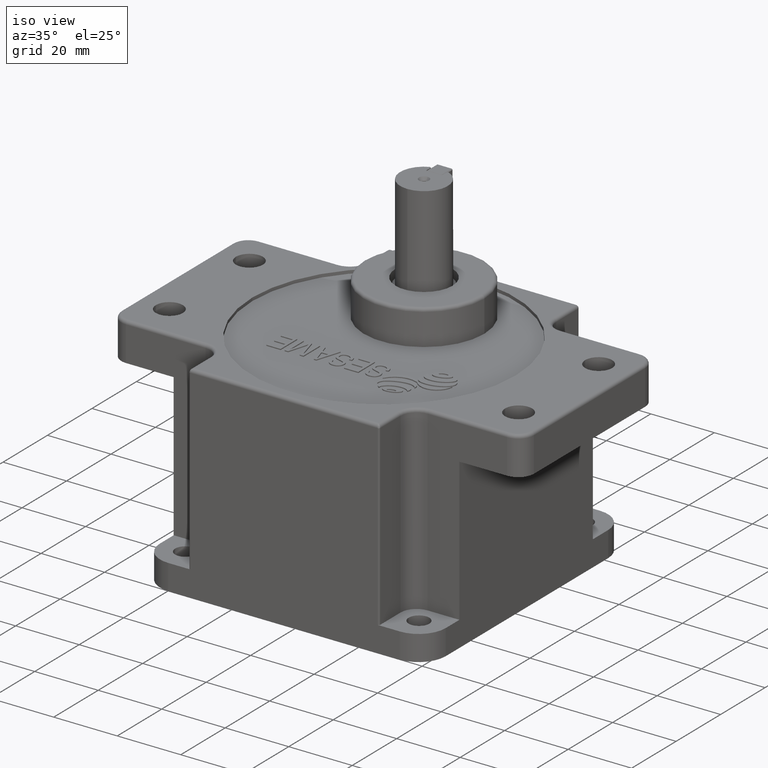
[diagram: clean part render]
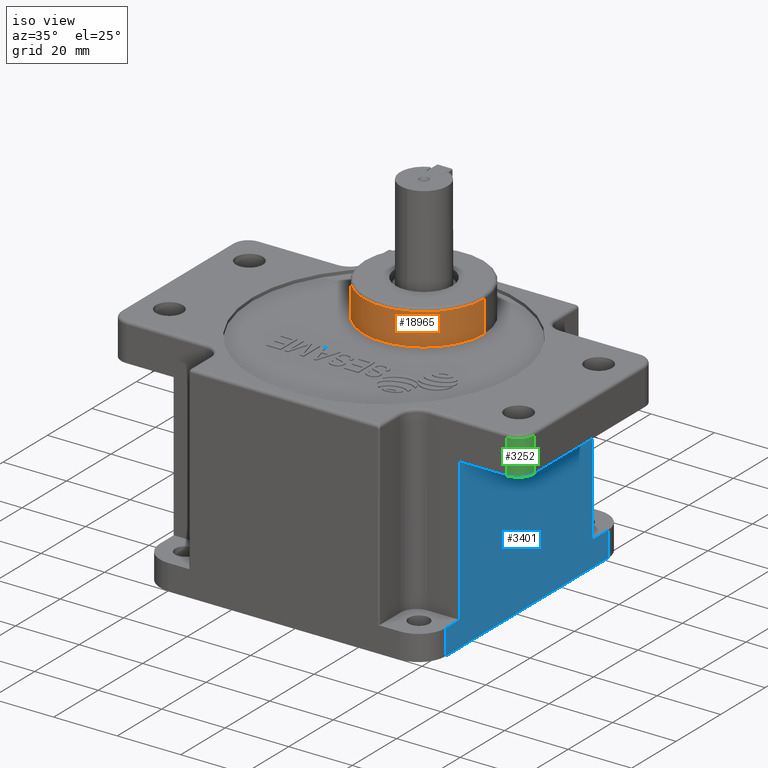
[diagram: same view with three faces highlighted in distinct colors, each labeled with its STEP entity id]
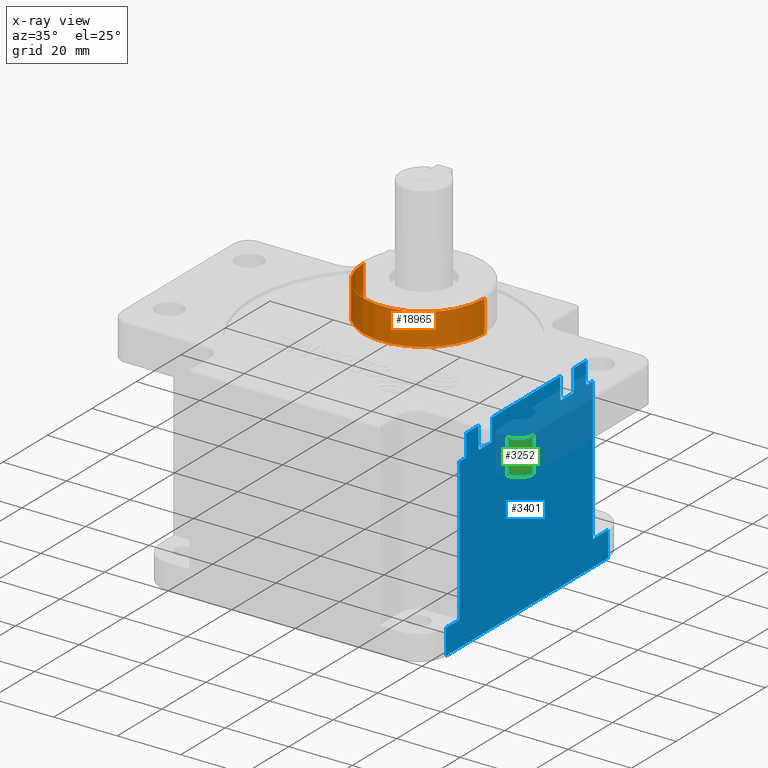
[diagram: x-ray of the same camera — body ghosted, the three highlighted faces saturated]
A machine part, iso view with three faces highlighted in distinct colors.
The next image is the same camera in x-ray (body ghosted, the three faces saturated) — at least one of them is partly hidden behind the body in this view.
Their STEP definitions:

[orange] entity #18965 — the highlighted cylindrical surface (partial cylindrical patch) has radius 19 mm, axis along (-0, 0, -1).
#253 = ORIENTED_EDGE ( 'NONE', *, *, #3058, .T. ) ;
#1688 = VERTEX_POINT ( 'NONE', #6928 ) ;
#1690 = EDGE_CURVE ( 'NONE', #2719, #1688, #6894, .T. ) ;
#1753 = EDGE_CURVE ( 'NONE', #2715, #1765, #7032, .T. ) ;
#1765 = VERTEX_POINT ( 'NONE', #7084 ) ;
#2715 = VERTEX_POINT ( 'NONE', #8562 ) ;
#2719 = VERTEX_POINT ( 'NONE', #8827 ) ;
#3058 = EDGE_CURVE ( 'NONE', #1765, #1688, #9487, .T. ) ;
#6893 = CARTESIAN_POINT ( 'NONE',  ( -18.99999999999999600, 17.99999999999959500, -75.00000000000000000 ) ) ;
#6894 = LINE ( 'NONE', #6893, #6905 ) ;
#6904 = DIRECTION ( 'NONE',  ( -0.0000000000000000000, -0.0000000000000000000, 1.000000000000000000 ) ) ;
#6905 = VECTOR ( 'NONE', #6904, 1000.000000000000000 ) ;
#6928 = CARTESIAN_POINT ( 'NONE',  ( -18.99999999999999600, 17.99999999999959500, -64.00000000000000000 ) ) ;
#7022 = DIRECTION ( 'NONE',  ( -0.0000000000000000000, -0.0000000000000000000, 1.000000000000000000 ) ) ;
#7023 = VECTOR ( 'NONE', #7022, 1000.000000000000000 ) ;
#7024 = CARTESIAN_POINT ( 'NONE',  ( 19.00000000000000400, 17.99999999999959100, -75.00000000000000000 ) ) ;
#7032 = LINE ( 'NONE', #7024, #7023 ) ;
#7084 = CARTESIAN_POINT ( 'NONE',  ( 19.00000000000000400, 17.99999999999959100, -64.00000000000000000 ) ) ;
#8562 = CARTESIAN_POINT ( 'NONE',  ( 19.00000000000000400, 17.99999999999959100, -74.00000000000000000 ) ) ;
#8827 = CARTESIAN_POINT ( 'NONE',  ( -18.99999999999999600, 17.99999999999959500, -74.00000000000000000 ) ) ;
#9475 = DIRECTION ( 'NONE',  ( -1.000000000000000000, 0.0000000000000000000, 0.0000000000000000000 ) ) ;
#9476 = DIRECTION ( 'NONE',  ( 0.0000000000000000000, 0.0000000000000000000, -1.000000000000000000 ) ) ;
#9477 = AXIS2_PLACEMENT_3D ( 'NONE', #9485, #9476, #9475 ) ;
#9485 = CARTESIAN_POINT ( 'NONE',  ( 3.785724844613976700E-015, 17.99999999999959100, -64.00000000000000000 ) ) ;
#9487 = CIRCLE ( 'NONE', #9477, 19.00000000000000000 ) ;
#15435 = CIRCLE ( 'NONE', #15491, 19.00000000000000000 ) ;
#15442 = CARTESIAN_POINT ( 'NONE',  ( 3.785724844613976700E-015, 17.99999999999959100, -74.00000000000000000 ) ) ;
#15489 = DIRECTION ( 'NONE',  ( -1.000000000000000000, 0.0000000000000000000, 0.0000000000000000000 ) ) ;
#15490 = DIRECTION ( 'NONE',  ( -0.0000000000000000000, -0.0000000000000000000, 1.000000000000000000 ) ) ;
#15491 = AXIS2_PLACEMENT_3D ( 'NONE', #15442, #15490, #15489 ) ;
#16255 = CYLINDRICAL_SURFACE ( 'NONE', #16300, 19.00000000000000000 ) ;
#16287 = DIRECTION ( 'NONE',  ( 1.000000000000000000, 0.0000000000000000000, 0.0000000000000000000 ) ) ;
#16288 = DIRECTION ( 'NONE',  ( -0.0000000000000000000, -0.0000000000000000000, 1.000000000000000000 ) ) ;
#16300 = AXIS2_PLACEMENT_3D ( 'NONE', #16308, #16288, #16287 ) ;
#16303 = FACE_OUTER_BOUND ( 'NONE', #18889, .T. ) ;
#16308 = CARTESIAN_POINT ( 'NONE',  ( 3.785724844613976700E-015, 17.99999999999959100, -75.00000000000000000 ) ) ;
#18460 = EDGE_CURVE ( 'NONE', #2719, #2715, #15435, .T. ) ;
#18820 = ORIENTED_EDGE ( 'NONE', *, *, #1753, .T. ) ;
#18835 = ORIENTED_EDGE ( 'NONE', *, *, #1690, .F. ) ;
#18880 = ORIENTED_EDGE ( 'NONE', *, *, #18460, .T. ) ;
#18889 = EDGE_LOOP ( 'NONE', ( #18835, #18880, #18820, #253 ) ) ;
#18965 = ADVANCED_FACE ( 'NONE', ( #16303 ), #16255, .T. ) ;

[blue] entity #3401 — the highlighted planar face has unit normal (-1, 0, 0).
#1392 = VERTEX_POINT ( 'NONE', #6209 ) ;
#1418 = EDGE_CURVE ( 'NONE', #1392, #1453, #6278, .T. ) ;
#1428 = ORIENTED_EDGE ( 'NONE', *, *, #1418, .F. ) ;
#1453 = VERTEX_POINT ( 'NONE', #6352 ) ;
#1474 = EDGE_CURVE ( 'NONE', #3375, #1453, #6383, .T. ) ;
#1536 = VERTEX_POINT ( 'NONE', #6553 ) ;
#1537 = ORIENTED_EDGE ( 'NONE', *, *, #2304, .F. ) ;
#1538 = EDGE_CURVE ( 'NONE', #1536, #1392, #6551, .T. ) ;
#1540 = ORIENTED_EDGE ( 'NONE', *, *, #1560, .F. ) ;
#1541 = VERTEX_POINT ( 'NONE', #6549 ) ;
#1542 = ORIENTED_EDGE ( 'NONE', *, *, #1538, .F. ) ;
#1543 = ORIENTED_EDGE ( 'NONE', *, *, #1628, .F. ) ;
#1544 = EDGE_CURVE ( 'NONE', #2317, #1541, #6493, .T. ) ;
#1549 = ORIENTED_EDGE ( 'NONE', *, *, #1544, .T. ) ;
#1560 = EDGE_CURVE ( 'NONE', #2301, #1536, #6267, .T. ) ;
#1618 = EDGE_CURVE ( 'NONE', #1621, #1625, #6784, .T. ) ;
#1621 = VERTEX_POINT ( 'NONE', #6789 ) ;
#1623 = ORIENTED_EDGE ( 'NONE', *, *, #1629, .T. ) ;
#1624 = ORIENTED_EDGE ( 'NONE', *, *, #1630, .T. ) ;
#1625 = VERTEX_POINT ( 'NONE', #6777 ) ;
#1628 = EDGE_CURVE ( 'NONE', #1621, #1541, #6770, .T. ) ;
#1629 = EDGE_CURVE ( 'NONE', #1625, #1633, #6828, .T. ) ;
#1630 = EDGE_CURVE ( 'NONE', #2247, #1632, #6822, .T. ) ;
#1632 = VERTEX_POINT ( 'NONE', #6823 ) ;
#1633 = VERTEX_POINT ( 'NONE', #6824 ) ;
#1635 = ORIENTED_EDGE ( 'NONE', *, *, #17092, .F. ) ;
#1636 = ORIENTED_EDGE ( 'NONE', *, *, #1648, .T. ) ;
#1648 = EDGE_CURVE ( 'NONE', #1633, #2258, #6867, .T. ) ;
#1653 = ORIENTED_EDGE ( 'NONE', *, *, #1664, .T. ) ;
#1654 = ORIENTED_EDGE ( 'NONE', *, *, #18079, .T. ) ;
#1656 = ORIENTED_EDGE ( 'NONE', *, *, #1618, .T. ) ;
#1657 = ORIENTED_EDGE ( 'NONE', *, *, #2250, .F. ) ;
#1663 = EDGE_CURVE ( 'NONE', #18080, #2276, #6842, .T. ) ;
#1664 = EDGE_CURVE ( 'NONE', #2279, #3376, #6845, .T. ) ;
#1667 = VERTEX_POINT ( 'NONE', #6853 ) ;
#1671 = ORIENTED_EDGE ( 'NONE', *, *, #1663, .T. ) ;
#1673 = ORIENTED_EDGE ( 'NONE', *, *, #17125, .T. ) ;
#2204 = VERTEX_POINT ( 'NONE', #7847 ) ;
#2209 = EDGE_CURVE ( 'NONE', #2204, #2287, #7828, .T. ) ;
#2247 = VERTEX_POINT ( 'NONE', #7883 ) ;
#2250 = EDGE_CURVE ( 'NONE', #2247, #2258, #7895, .T. ) ;
#2258 = VERTEX_POINT ( 'NONE', #7945 ) ;
#2272 = EDGE_CURVE ( 'NONE', #2279, #2276, #7928, .T. ) ;
#2276 = VERTEX_POINT ( 'NONE', #7975 ) ;
#2279 = VERTEX_POINT ( 'NONE', #7919 ) ;
#2287 = VERTEX_POINT ( 'NONE', #7968 ) ;
#2301 = VERTEX_POINT ( 'NONE', #7950 ) ;
#2304 = EDGE_CURVE ( 'NONE', #2317, #2301, #7947, .T. ) ;
#2317 = VERTEX_POINT ( 'NONE', #8005 ) ;
#3244 = ORIENTED_EDGE ( 'NONE', *, *, #3379, .F. ) ;
#3337 = VERTEX_POINT ( 'NONE', #10323 ) ;
#3365 = EDGE_CURVE ( 'NONE', #3382, #3337, #10327, .T. ) ;
#3373 = EDGE_CURVE ( 'NONE', #3433, #2287, #10376, .T. ) ;
#3374 = ORIENTED_EDGE ( 'NONE', *, *, #3365, .T. ) ;
#3375 = VERTEX_POINT ( 'NONE', #10332 ) ;
#3376 = VERTEX_POINT ( 'NONE', #10338 ) ;
#3379 = EDGE_CURVE ( 'NONE', #3382, #3376, #10361, .T. ) ;
#3381 = ORIENTED_EDGE ( 'NONE', *, *, #3373, .T. ) ;
#3382 = VERTEX_POINT ( 'NONE', #10372 ) ;
#3392 = EDGE_LOOP ( 'NONE', ( #3244, #3374, #3402, #3381, #3478, #3477, #3481, #3409, #3418, #1428, #1542, #1540, #1537, #1549, #1543, #1656, #1623, #1636, #1657, #1624, #1635, #1654, #1673, #1671, #17900, #1653 ) ) ;
#3401 = ADVANCED_FACE ( 'NONE', ( #10406 ), #10389, .F. ) ;
#3402 = ORIENTED_EDGE ( 'NONE', *, *, #3432, .T. ) ;
#3409 = ORIENTED_EDGE ( 'NONE', *, *, #3410, .T. ) ;
#3410 = EDGE_CURVE ( 'NONE', #3476, #3375, #10438, .T. ) ;
#3412 = VERTEX_POINT ( 'NONE', #10428 ) ;
#3416 = EDGE_CURVE ( 'NONE', #2204, #3412, #10436, .T. ) ;
#3418 = ORIENTED_EDGE ( 'NONE', *, *, #1474, .T. ) ;
#3432 = EDGE_CURVE ( 'NONE', #3337, #3433, #10451, .T. ) ;
#3433 = VERTEX_POINT ( 'NONE', #10452 ) ;
#3476 = VERTEX_POINT ( 'NONE', #10556 ) ;
#3477 = ORIENTED_EDGE ( 'NONE', *, *, #3416, .T. ) ;
#3478 = ORIENTED_EDGE ( 'NONE', *, *, #2209, .F. ) ;
#3479 = EDGE_CURVE ( 'NONE', #3476, #3412, #10546, .T. ) ;
#3481 = ORIENTED_EDGE ( 'NONE', *, *, #3479, .F. ) ;
#6209 = CARTESIAN_POINT ( 'NONE',  ( -45.00000000000003600, 36.49999999999992200, -8.000000000000000000 ) ) ;
#6267 = LINE ( 'NONE', #6283, #6496 ) ;
#6275 = DIRECTION ( 'NONE',  ( 0.0000000000000000000, 0.0000000000000000000, 1.000000000000000000 ) ) ;
#6276 = VECTOR ( 'NONE', #6275, 1000.000000000000000 ) ;
#6277 = CARTESIAN_POINT ( 'NONE',  ( -45.00000000000003600, 36.49999999999992200, -65.00000000000000000 ) ) ;
#6278 = LINE ( 'NONE', #6277, #6276 ) ;
#6283 = CARTESIAN_POINT ( 'NONE',  ( -45.00000000000003600, 29.66112734550888100, -65.00000000000000000 ) ) ;
#6352 = CARTESIAN_POINT ( 'NONE',  ( -45.00000000000003600, 36.49999999999992200, 0.0000000000000000000 ) ) ;
#6378 = DIRECTION ( 'NONE',  ( 0.0000000000000000000, 1.000000000000000000, -0.0000000000000000000 ) ) ;
#6379 = VECTOR ( 'NONE', #6378, 1000.000000000000000 ) ;
#6380 = CARTESIAN_POINT ( 'NONE',  ( -45.00000000000003600, -99.14142135623730200, 0.0000000000000000000 ) ) ;
#6383 = LINE ( 'NONE', #6380, #6379 ) ;
#6493 = CIRCLE ( 'NONE', #6542, 0.5000000000000004400 ) ;
#6496 = VECTOR ( 'NONE', #6536, 1000.000000000000000 ) ;
#6522 = DIRECTION ( 'NONE',  ( -0.0000000000000000000, -0.0000000000000000000, 1.000000000000000000 ) ) ;
#6536 = DIRECTION ( 'NONE',  ( 0.0000000000000000000, 0.0000000000000000000, 1.000000000000000000 ) ) ;
#6539 = DIRECTION ( 'NONE',  ( 0.0000000000000000000, 0.0000000000000000000, -1.000000000000000000 ) ) ;
#6540 = DIRECTION ( 'NONE',  ( 1.000000000000000000, -0.0000000000000000000, 0.0000000000000000000 ) ) ;
#6541 = CARTESIAN_POINT ( 'NONE',  ( -45.00000000000003600, 27.16112734550886300, -53.50000000000000700 ) ) ;
#6542 = AXIS2_PLACEMENT_3D ( 'NONE', #6541, #6540, #6539 ) ;
#6547 = DIRECTION ( 'NONE',  ( 0.0000000000000000000, 1.000000000000000000, 0.0000000000000000000 ) ) ;
#6548 = VECTOR ( 'NONE', #6547, 1000.000000000000000 ) ;
#6549 = CARTESIAN_POINT ( 'NONE',  ( -44.99999999999996400, 26.66112734550885200, -53.50000000000000700 ) ) ;
#6550 = CARTESIAN_POINT ( 'NONE',  ( -45.00000000000003600, -99.14142135623730200, -8.000000000000000000 ) ) ;
#6551 = LINE ( 'NONE', #6550, #6548 ) ;
#6553 = CARTESIAN_POINT ( 'NONE',  ( -45.00000000000004300, 29.66112734550886300, -8.000000000000000000 ) ) ;
#6770 = LINE ( 'NONE', #6780, #6786 ) ;
#6777 = CARTESIAN_POINT ( 'NONE',  ( -44.99999999999996400, 20.99999999999998900, -60.00000000000000700 ) ) ;
#6780 = CARTESIAN_POINT ( 'NONE',  ( -44.99999999999996400, 26.66112734550885200, -61.00000000000000700 ) ) ;
#6781 = DIRECTION ( 'NONE',  ( -0.0000000000000000000, -1.000000000000000000, 0.0000000000000000000 ) ) ;
#6782 = VECTOR ( 'NONE', #6781, 1000.000000000000000 ) ;
#6783 = CARTESIAN_POINT ( 'NONE',  ( -45.00000000000003600, -99.14142135623730200, -60.00000000000000700 ) ) ;
#6784 = LINE ( 'NONE', #6783, #6782 ) ;
#6786 = VECTOR ( 'NONE', #6522, 1000.000000000000000 ) ;
#6789 = CARTESIAN_POINT ( 'NONE',  ( -44.99999999999996400, 26.66112734550885200, -60.00000000000000700 ) ) ;
#6805 = CARTESIAN_POINT ( 'NONE',  ( -45.00000000000003600, 20.49999999999998900, -53.50000000000000700 ) ) ;
#6808 = AXIS2_PLACEMENT_3D ( 'NONE', #6805, #6851, #6850 ) ;
#6820 = DIRECTION ( 'NONE',  ( 0.0000000000000000000, 0.0000000000000000000, -1.000000000000000000 ) ) ;
#6821 = AXIS2_PLACEMENT_3D ( 'NONE', #6831, #6830, #6820 ) ;
#6822 = CIRCLE ( 'NONE', #6821, 0.5000000000000004400 ) ;
#6823 = CARTESIAN_POINT ( 'NONE',  ( -44.99999999999996400, 15.00000000000000000, -53.50000000000000700 ) ) ;
#6824 = CARTESIAN_POINT ( 'NONE',  ( -44.99999999999996400, 20.99999999999998900, -53.50000000000000700 ) ) ;
#6825 = DIRECTION ( 'NONE',  ( -0.0000000000000000000, -0.0000000000000000000, 1.000000000000000000 ) ) ;
#6826 = VECTOR ( 'NONE', #6825, 1000.000000000000000 ) ;
#6827 = CARTESIAN_POINT ( 'NONE',  ( -44.99999999999996400, 20.99999999999998900, -61.00000000000000700 ) ) ;
#6828 = LINE ( 'NONE', #6827, #6826 ) ;
#6830 = DIRECTION ( 'NONE',  ( 1.000000000000000000, -0.0000000000000000000, 0.0000000000000000000 ) ) ;
#6831 = CARTESIAN_POINT ( 'NONE',  ( -45.00000000000003600, 15.50000000000000000, -53.50000000000000700 ) ) ;
#6834 = DIRECTION ( 'NONE',  ( 0.0000000000000000000, 0.0000000000000000000, -1.000000000000000000 ) ) ;
#6835 = DIRECTION ( 'NONE',  ( 1.000000000000000000, -0.0000000000000000000, 0.0000000000000000000 ) ) ;
#6836 = AXIS2_PLACEMENT_3D ( 'NONE', #6843, #6835, #6834 ) ;
#6839 = DIRECTION ( 'NONE',  ( 0.0000000000000000000, 0.0000000000000000000, -1.000000000000000000 ) ) ;
#6840 = DIRECTION ( 'NONE',  ( 1.000000000000000000, -0.0000000000000000000, 0.0000000000000000000 ) ) ;
#6841 = AXIS2_PLACEMENT_3D ( 'NONE', #6854, #6840, #6839 ) ;
#6842 = CIRCLE ( 'NONE', #6841, 0.5000000000000004400 ) ;
#6843 = CARTESIAN_POINT ( 'NONE',  ( -45.00000000000004300, -21.17774530898228100, -53.50000000000000700 ) ) ;
#6845 = CIRCLE ( 'NONE', #6836, 0.5000000000000004400 ) ;
#6850 = DIRECTION ( 'NONE',  ( 0.0000000000000000000, 0.0000000000000000000, -1.000000000000000000 ) ) ;
#6851 = DIRECTION ( 'NONE',  ( 1.000000000000000000, -0.0000000000000000000, 0.0000000000000000000 ) ) ;
#6853 = CARTESIAN_POINT ( 'NONE',  ( -44.99999999999994300, -15.67774530898227800, -60.00000000000000700 ) ) ;
#6854 = CARTESIAN_POINT ( 'NONE',  ( -45.00000000000004300, -16.17774530898227800, -53.50000000000000700 ) ) ;
#6867 = CIRCLE ( 'NONE', #6808, 0.5000000000000004400 ) ;
#7828 = LINE ( 'NONE', #7878, #7877 ) ;
#7847 = CARTESIAN_POINT ( 'NONE',  ( -45.00000000000004300, -30.33887265449111600, -53.00000000000000700 ) ) ;
#7876 = DIRECTION ( 'NONE',  ( 0.0000000000000000000, 1.000000000000000000, 0.0000000000000000000 ) ) ;
#7877 = VECTOR ( 'NONE', #7876, 1000.000000000000000 ) ;
#7878 = CARTESIAN_POINT ( 'NONE',  ( -45.00000000000004300, -2.105946769491138600E-015, -53.00000000000000700 ) ) ;
#7883 = CARTESIAN_POINT ( 'NONE',  ( -45.00000000000004300, 15.50000000000000000, -53.00000000000000700 ) ) ;
#7890 = DIRECTION ( 'NONE',  ( 0.0000000000000000000, 1.000000000000000000, 0.0000000000000000000 ) ) ;
#7891 = VECTOR ( 'NONE', #7890, 1000.000000000000000 ) ;
#7894 = CARTESIAN_POINT ( 'NONE',  ( -45.00000000000004300, -2.105946769491138600E-015, -53.00000000000000700 ) ) ;
#7895 = LINE ( 'NONE', #7894, #7891 ) ;
#7919 = CARTESIAN_POINT ( 'NONE',  ( -45.00000000000004300, -21.17774530898228100, -53.00000000000000700 ) ) ;
#7928 = LINE ( 'NONE', #7980, #7979 ) ;
#7945 = CARTESIAN_POINT ( 'NONE',  ( -45.00000000000004300, 20.49999999999998900, -53.00000000000000700 ) ) ;
#7947 = LINE ( 'NONE', #7997, #7996 ) ;
#7950 = CARTESIAN_POINT ( 'NONE',  ( -45.00000000000003600, 29.66112734550888100, -53.00000000000000700 ) ) ;
#7968 = CARTESIAN_POINT ( 'NONE',  ( -45.00000000000004300, -27.83887265449114100, -53.00000000000000700 ) ) ;
#7975 = CARTESIAN_POINT ( 'NONE',  ( -45.00000000000004300, -16.17774530898227800, -53.00000000000000700 ) ) ;
#7978 = DIRECTION ( 'NONE',  ( 0.0000000000000000000, 1.000000000000000000, 0.0000000000000000000 ) ) ;
#7979 = VECTOR ( 'NONE', #7978, 1000.000000000000000 ) ;
#7980 = CARTESIAN_POINT ( 'NONE',  ( -45.00000000000004300, -2.105946769491138600E-015, -53.00000000000000700 ) ) ;
#7995 = DIRECTION ( 'NONE',  ( 0.0000000000000000000, 1.000000000000000000, 0.0000000000000000000 ) ) ;
#7996 = VECTOR ( 'NONE', #7995, 1000.000000000000000 ) ;
#7997 = CARTESIAN_POINT ( 'NONE',  ( -45.00000000000004300, -2.105946769491138600E-015, -53.00000000000000700 ) ) ;
#8005 = CARTESIAN_POINT ( 'NONE',  ( -45.00000000000004300, 27.16112734550886300, -53.00000000000000700 ) ) ;
#10323 = CARTESIAN_POINT ( 'NONE',  ( -44.99999999999994300, -27.33887265449114100, -60.00000000000000700 ) ) ;
#10324 = DIRECTION ( 'NONE',  ( -0.0000000000000000000, -1.000000000000000000, 0.0000000000000000000 ) ) ;
#10325 = VECTOR ( 'NONE', #10324, 1000.000000000000000 ) ;
#10326 = CARTESIAN_POINT ( 'NONE',  ( -45.00000000000003600, -99.14142135623730200, -60.00000000000000700 ) ) ;
#10327 = LINE ( 'NONE', #10326, #10325 ) ;
#10332 = CARTESIAN_POINT ( 'NONE',  ( -45.00000000000003600, -36.49999999999995000, 0.0000000000000000000 ) ) ;
#10338 = CARTESIAN_POINT ( 'NONE',  ( -44.99999999999994300, -21.67774530898228100, -53.50000000000000700 ) ) ;
#10358 = DIRECTION ( 'NONE',  ( -0.0000000000000000000, -0.0000000000000000000, 1.000000000000000000 ) ) ;
#10359 = VECTOR ( 'NONE', #10358, 1000.000000000000000 ) ;
#10360 = CARTESIAN_POINT ( 'NONE',  ( -44.99999999999994300, -21.67774530898228100, -61.00000000000000700 ) ) ;
#10361 = LINE ( 'NONE', #10360, #10359 ) ;
#10368 = DIRECTION ( 'NONE',  ( 0.0000000000000000000, 0.0000000000000000000, -1.000000000000000000 ) ) ;
#10369 = DIRECTION ( 'NONE',  ( 1.000000000000000000, -0.0000000000000000000, 0.0000000000000000000 ) ) ;
#10370 = CARTESIAN_POINT ( 'NONE',  ( -45.00000000000002800, -27.83887265449114100, -53.50000000000000700 ) ) ;
#10371 = AXIS2_PLACEMENT_3D ( 'NONE', #10370, #10369, #10368 ) ;
#10372 = CARTESIAN_POINT ( 'NONE',  ( -44.99999999999994300, -21.67774530898228100, -60.00000000000000700 ) ) ;
#10376 = CIRCLE ( 'NONE', #10371, 0.5000000000000004400 ) ;
#10388 = AXIS2_PLACEMENT_3D ( 'NONE', #10397, #10396, #10445 ) ;
#10389 = PLANE ( 'NONE',  #10388 ) ;
#10396 = DIRECTION ( 'NONE',  ( 1.000000000000000000, -0.0000000000000000000, 0.0000000000000000000 ) ) ;
#10397 = CARTESIAN_POINT ( 'NONE',  ( -45.00000000000003600, -99.14142135623730200, -65.00000000000000000 ) ) ;
#10406 = FACE_OUTER_BOUND ( 'NONE', #3392, .T. ) ;
#10418 = DIRECTION ( 'NONE',  ( 0.0000000000000000000, 0.0000000000000000000, 1.000000000000000000 ) ) ;
#10428 = CARTESIAN_POINT ( 'NONE',  ( -45.00000000000004300, -30.33887265449111900, -8.000000000000000000 ) ) ;
#10431 = DIRECTION ( 'NONE',  ( 0.0000000000000000000, 0.0000000000000000000, 1.000000000000000000 ) ) ;
#10432 = VECTOR ( 'NONE', #10431, 1000.000000000000000 ) ;
#10435 = CARTESIAN_POINT ( 'NONE',  ( -45.00000000000003600, -30.33887265449111600, -65.00000000000000000 ) ) ;
#10436 = LINE ( 'NONE', #10435, #10446 ) ;
#10437 = CARTESIAN_POINT ( 'NONE',  ( -45.00000000000003600, -36.49999999999995000, -65.00000000000000000 ) ) ;
#10438 = LINE ( 'NONE', #10437, #10432 ) ;
#10445 = DIRECTION ( 'NONE',  ( 0.0000000000000000000, 0.0000000000000000000, -1.000000000000000000 ) ) ;
#10446 = VECTOR ( 'NONE', #10418, 1000.000000000000000 ) ;
#10451 = LINE ( 'NONE', #10459, #10458 ) ;
#10452 = CARTESIAN_POINT ( 'NONE',  ( -44.99999999999994300, -27.33887265449114100, -53.50000000000000700 ) ) ;
#10457 = DIRECTION ( 'NONE',  ( -0.0000000000000000000, -0.0000000000000000000, 1.000000000000000000 ) ) ;
#10458 = VECTOR ( 'NONE', #10457, 1000.000000000000000 ) ;
#10459 = CARTESIAN_POINT ( 'NONE',  ( -44.99999999999994300, -27.33887265449114100, -61.00000000000000700 ) ) ;
#10543 = DIRECTION ( 'NONE',  ( 0.0000000000000000000, 1.000000000000000000, 0.0000000000000000000 ) ) ;
#10544 = VECTOR ( 'NONE', #10543, 1000.000000000000000 ) ;
#10545 = CARTESIAN_POINT ( 'NONE',  ( -45.00000000000003600, -99.14142135623730200, -8.000000000000000000 ) ) ;
#10546 = LINE ( 'NONE', #10545, #10544 ) ;
#10556 = CARTESIAN_POINT ( 'NONE',  ( -45.00000000000003600, -36.50000000000001400, -8.000000000000000000 ) ) ;
#11653 = CARTESIAN_POINT ( 'NONE',  ( -44.99999999999996400, 15.00000000000000000, -61.00000000000000700 ) ) ;
#11654 = LINE ( 'NONE', #11653, #11679 ) ;
#11678 = DIRECTION ( 'NONE',  ( -0.0000000000000000000, -0.0000000000000000000, 1.000000000000000000 ) ) ;
#11679 = VECTOR ( 'NONE', #11678, 1000.000000000000000 ) ;
#11728 = CARTESIAN_POINT ( 'NONE',  ( -44.99999999999996400, 15.00000000000000000, -60.00000000000000700 ) ) ;
#11791 = DIRECTION ( 'NONE',  ( -0.0000000000000000000, -0.0000000000000000000, 1.000000000000000000 ) ) ;
#11792 = VECTOR ( 'NONE', #11791, 1000.000000000000000 ) ;
#11793 = CARTESIAN_POINT ( 'NONE',  ( -44.99999999999994300, -15.67774530898227800, -61.00000000000000700 ) ) ;
#11794 = LINE ( 'NONE', #11793, #11792 ) ;
#14772 = CARTESIAN_POINT ( 'NONE',  ( -45.00000000000003600, -99.14142135623730200, -60.00000000000000700 ) ) ;
#14773 = LINE ( 'NONE', #14772, #14820 ) ;
#14776 = CARTESIAN_POINT ( 'NONE',  ( -44.99999999999994300, -15.67774530898227800, -53.50000000000000700 ) ) ;
#14819 = DIRECTION ( 'NONE',  ( -0.0000000000000000000, -1.000000000000000000, 0.0000000000000000000 ) ) ;
#14820 = VECTOR ( 'NONE', #14819, 1000.000000000000000 ) ;
#17092 = EDGE_CURVE ( 'NONE', #17130, #1632, #11654, .T. ) ;
#17125 = EDGE_CURVE ( 'NONE', #1667, #18080, #11794, .T. ) ;
#17130 = VERTEX_POINT ( 'NONE', #11728 ) ;
#17900 = ORIENTED_EDGE ( 'NONE', *, *, #2272, .F. ) ;
#18079 = EDGE_CURVE ( 'NONE', #17130, #1667, #14773, .T. ) ;
#18080 = VERTEX_POINT ( 'NONE', #14776 ) ;

[green] entity #3252 — the highlighted cylindrical surface (edge-blend (fillet) strip) has radius 5 mm, axis along (0, -0, 1).
#2236 = ORIENTED_EDGE ( 'NONE', *, *, #2314, .F. ) ;
#2305 = VERTEX_POINT ( 'NONE', #8004 ) ;
#2314 = EDGE_CURVE ( 'NONE', #2305, #2315, #7998, .T. ) ;
#2315 = VERTEX_POINT ( 'NONE', #8006 ) ;
#2642 = EDGE_CURVE ( 'NONE', #17636, #17628, #8656, .T. ) ;
#3125 = ORIENTED_EDGE ( 'NONE', *, *, #2642, .T. ) ;
#3143 = ORIENTED_EDGE ( 'NONE', *, *, #17633, .F. ) ;
#3248 = EDGE_LOOP ( 'NONE', ( #3143, #3125, #18686, #2236 ) ) ;
#3252 = ADVANCED_FACE ( 'NONE', ( #10051 ), #10066, .T. ) ;
#7984 = AXIS2_PLACEMENT_3D ( 'NONE', #8038, #8037, #8036 ) ;
#7998 = CIRCLE ( 'NONE', #7984, 5.000000000000004400 ) ;
#8004 = CARTESIAN_POINT ( 'NONE',  ( -65.00000000000000000, -25.33887265449112600, -53.00000000000000700 ) ) ;
#8006 = CARTESIAN_POINT ( 'NONE',  ( -60.00000000000000000, -30.33887265449113400, -53.00000000000000700 ) ) ;
#8036 = DIRECTION ( 'NONE',  ( -1.000000000000000000, 0.0000000000000000000, 0.0000000000000000000 ) ) ;
#8037 = DIRECTION ( 'NONE',  ( -0.0000000000000000000, -0.0000000000000000000, 1.000000000000000000 ) ) ;
#8038 = CARTESIAN_POINT ( 'NONE',  ( -60.00000000000000000, -25.33887265449112600, -53.00000000000000700 ) ) ;
#8654 = AXIS2_PLACEMENT_3D ( 'NONE', #8709, #8708, #8707 ) ;
#8656 = CIRCLE ( 'NONE', #8654, 4.999999999999997300 ) ;
#8707 = DIRECTION ( 'NONE',  ( 1.000000000000000000, 0.0000000000000000000, 0.0000000000000000000 ) ) ;
#8708 = DIRECTION ( 'NONE',  ( -0.0000000000000000000, 0.0000000000000000000, 1.000000000000000000 ) ) ;
#8709 = CARTESIAN_POINT ( 'NONE',  ( -60.00000000000000000, -25.33887265449112600, -64.00000000000000000 ) ) ;
#10051 = FACE_OUTER_BOUND ( 'NONE', #3248, .T. ) ;
#10053 = DIRECTION ( 'NONE',  ( -1.000000000000000000, 0.0000000000000000000, 0.0000000000000000000 ) ) ;
#10061 = DIRECTION ( 'NONE',  ( 0.0000000000000000000, 0.0000000000000000000, -1.000000000000000000 ) ) ;
#10063 = CARTESIAN_POINT ( 'NONE',  ( -60.00000000000000000, -25.33887265449112600, -8.000000000000000000 ) ) ;
#10066 = CYLINDRICAL_SURFACE ( 'NONE', #10094, 5.000000000000004400 ) ;
#10094 = AXIS2_PLACEMENT_3D ( 'NONE', #10063, #10061, #10053 ) ;
#13836 = DIRECTION ( 'NONE',  ( -0.0000000000000000000, -0.0000000000000000000, 1.000000000000000000 ) ) ;
#13837 = VECTOR ( 'NONE', #13836, 1000.000000000000000 ) ;
#13838 = CARTESIAN_POINT ( 'NONE',  ( -65.00000000000000000, -25.33887265449112600, -53.00000000000000700 ) ) ;
#13842 = LINE ( 'NONE', #13838, #13837 ) ;
#13852 = CARTESIAN_POINT ( 'NONE',  ( -60.00000000000000000, -30.33887265449112300, -64.00000000000000000 ) ) ;
#13894 = CARTESIAN_POINT ( 'NONE',  ( -65.00000000000000000, -25.33887265449112600, -64.00000000000000000 ) ) ;
#13899 = DIRECTION ( 'NONE',  ( 0.0000000000000000000, 0.0000000000000000000, -1.000000000000000000 ) ) ;
#13900 = VECTOR ( 'NONE', #13899, 1000.000000000000000 ) ;
#13901 = CARTESIAN_POINT ( 'NONE',  ( -60.00000000000000000, -30.33887265449112300, -8.000000000000000000 ) ) ;
#13902 = LINE ( 'NONE', #13901, #13900 ) ;
#17628 = VERTEX_POINT ( 'NONE', #13852 ) ;
#17633 = EDGE_CURVE ( 'NONE', #17636, #2305, #13842, .T. ) ;
#17636 = VERTEX_POINT ( 'NONE', #13894 ) ;
#17656 = EDGE_CURVE ( 'NONE', #2315, #17628, #13902, .T. ) ;
#18686 = ORIENTED_EDGE ( 'NONE', *, *, #17656, .F. ) ;